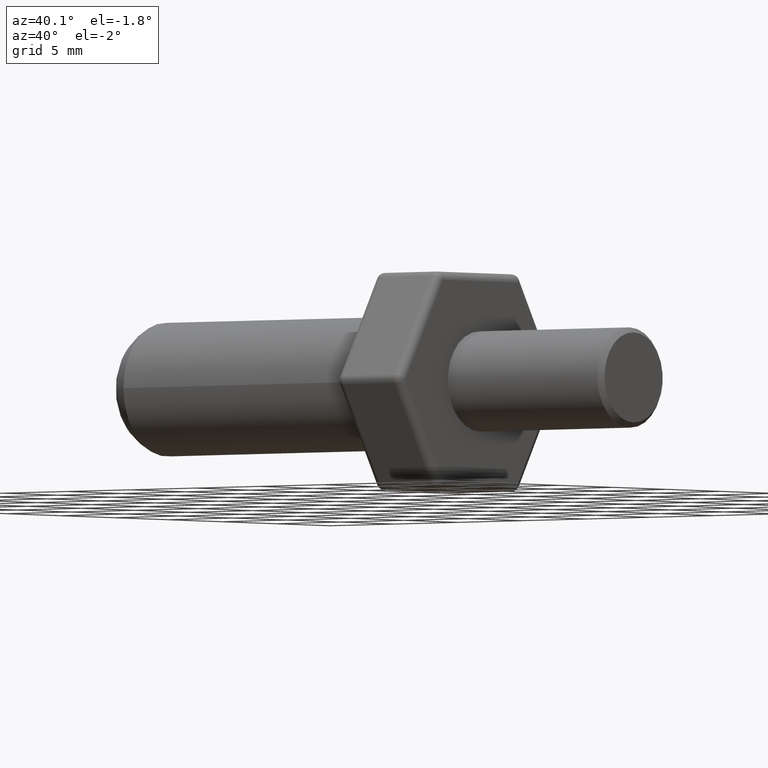
[diagram: clean part render]
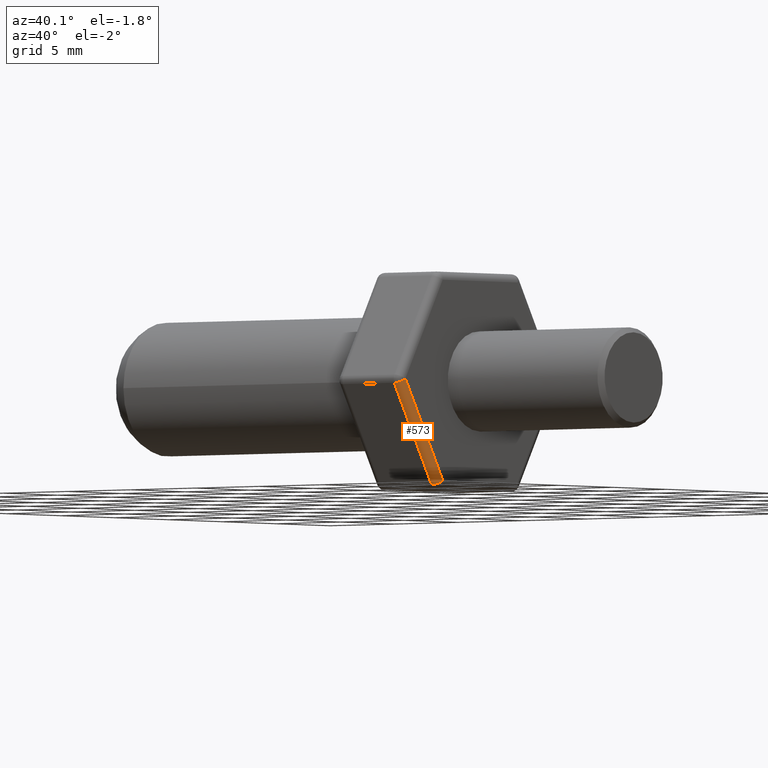
[diagram: same view with one face highlighted and labeled with its STEP entity id]
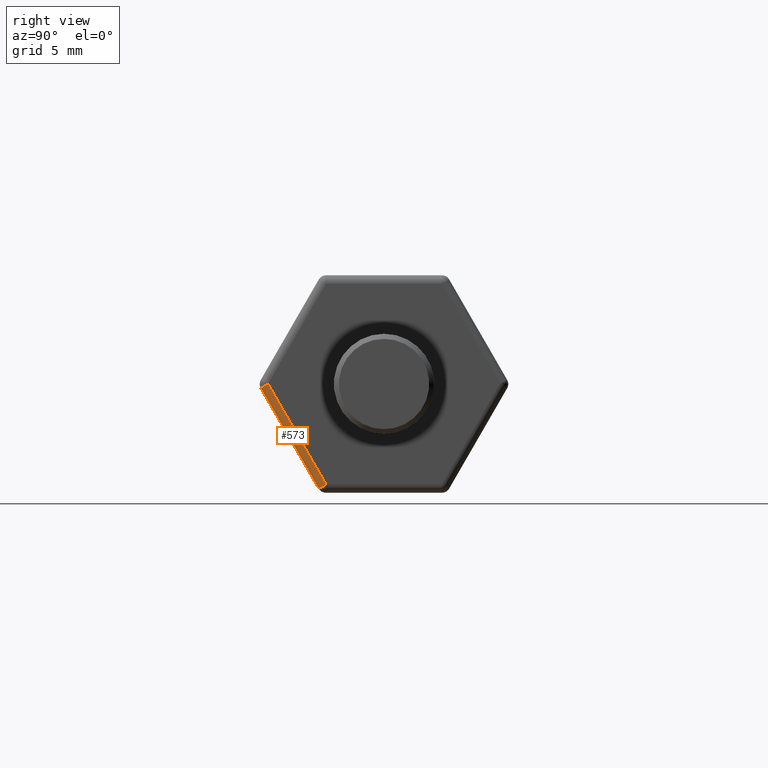
[diagram: same view with one face highlighted and labeled with its STEP entity id]
A machine part, auxiliary view. The second image highlights one B-rep face of the part: STEP entity #573.
A second angle (right view) of the same face is appended — the face is thin or edge-on in the first view.
In plain terms, the highlighted cylindrical surface (edge-blend (fillet) strip) has radius 0.5 mm, axis along (0, 0.5, -0.866).
Its self-contained STEP definition (entity closure, byte-faithful):
#34=LINE('',#963,#73);
#35=LINE('',#966,#74);
#73=VECTOR('',#752,10.);
#74=VECTOR('',#755,10.);
#108=CYLINDRICAL_SURFACE('',#643,0.5);
#131=FACE_OUTER_BOUND('',#174,.T.);
#174=EDGE_LOOP('',(#406,#407,#408,#409));
#215=CIRCLE('',#633,0.5);
#221=CIRCLE('',#644,0.5);
#260=VERTEX_POINT('',#936);
#261=VERTEX_POINT('',#938);
#268=VERTEX_POINT('',#962);
#269=VERTEX_POINT('',#964);
#305=EDGE_CURVE('',#260,#261,#215,.T.);
#317=EDGE_CURVE('',#260,#268,#34,.T.);
#318=EDGE_CURVE('',#269,#268,#221,.T.);
#319=EDGE_CURVE('',#269,#261,#35,.T.);
#406=ORIENTED_EDGE('',*,*,#305,.F.);
#407=ORIENTED_EDGE('',*,*,#317,.T.);
#408=ORIENTED_EDGE('',*,*,#318,.F.);
#409=ORIENTED_EDGE('',*,*,#319,.T.);
#573=ADVANCED_FACE('',(#131),#108,.T.);
#633=AXIS2_PLACEMENT_3D('',#939,#724,#725);
#643=AXIS2_PLACEMENT_3D('',#961,#750,#751);
#644=AXIS2_PLACEMENT_3D('',#965,#753,#754);
#724=DIRECTION('center_axis',(0.,-0.5,0.866025403784439));
#725=DIRECTION('ref_axis',(0.707106781186546,-0.612372435695796,-0.353553390593275));
#750=DIRECTION('center_axis',(0.,0.5,-0.866025403784439));
#751=DIRECTION('ref_axis',(0.707106781186547,-0.612372435695796,-0.353553390593274));
#752=DIRECTION('',(0.,0.5,-0.866025403784439));
#753=DIRECTION('center_axis',(0.,0.5,-0.866025403784439));
#754=DIRECTION('ref_axis',(0.707106781186546,-0.612372435695796,-0.353553390593273));
#755=DIRECTION('',(0.,-0.5,0.866025403784439));
#936=CARTESIAN_POINT('',(26.5,-7.36121593216773,-0.250000000000001));
#938=CARTESIAN_POINT('',(27.,-6.92820323027551,-2.77555756156289E-15));
#939=CARTESIAN_POINT('Origin',(26.5,-6.92820323027551,-1.38777878078145E-15));
#961=CARTESIAN_POINT('Origin',(26.5,-6.13434661013978,-1.375));
#962=CARTESIAN_POINT('',(26.5,-3.89711431702998,-6.25));
#963=CARTESIAN_POINT('',(26.5,-6.56735931203199,-1.625));
#964=CARTESIAN_POINT('',(27.,-3.46410161513776,-6.));
#965=CARTESIAN_POINT('Origin',(26.5,-3.46410161513776,-6.));
#966=CARTESIAN_POINT('',(27.,-6.13434661013978,-1.375));